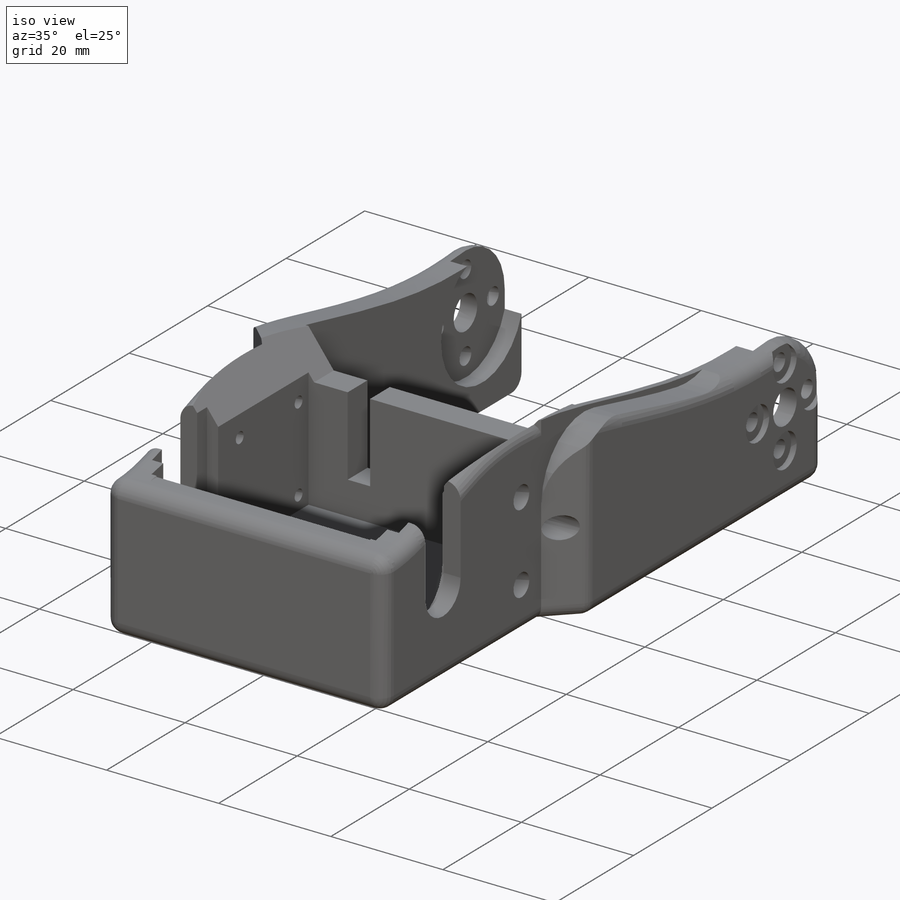
[diagram: iso view]
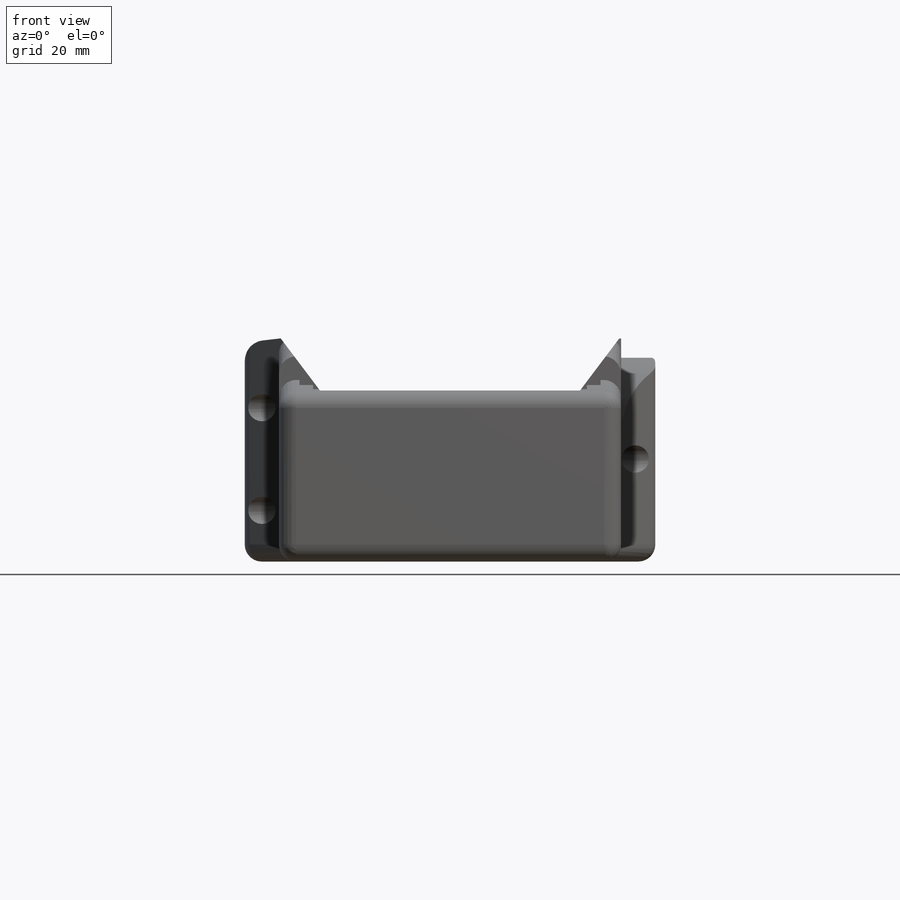
[diagram: front view]
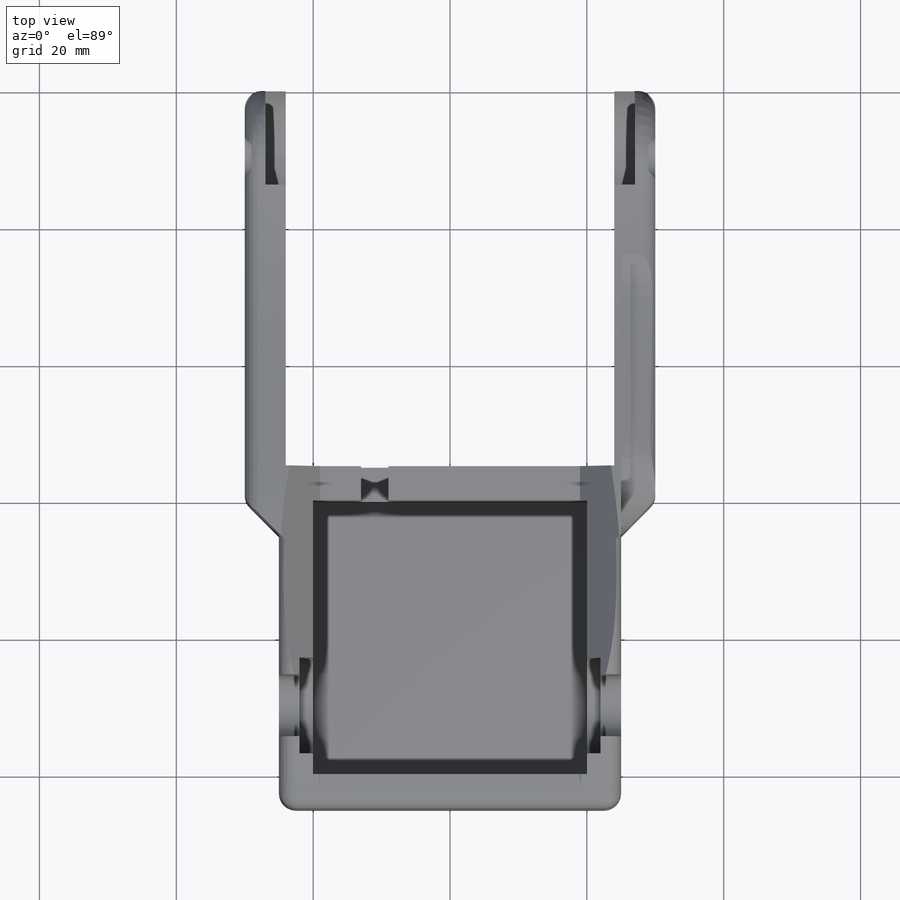
[diagram: top view]
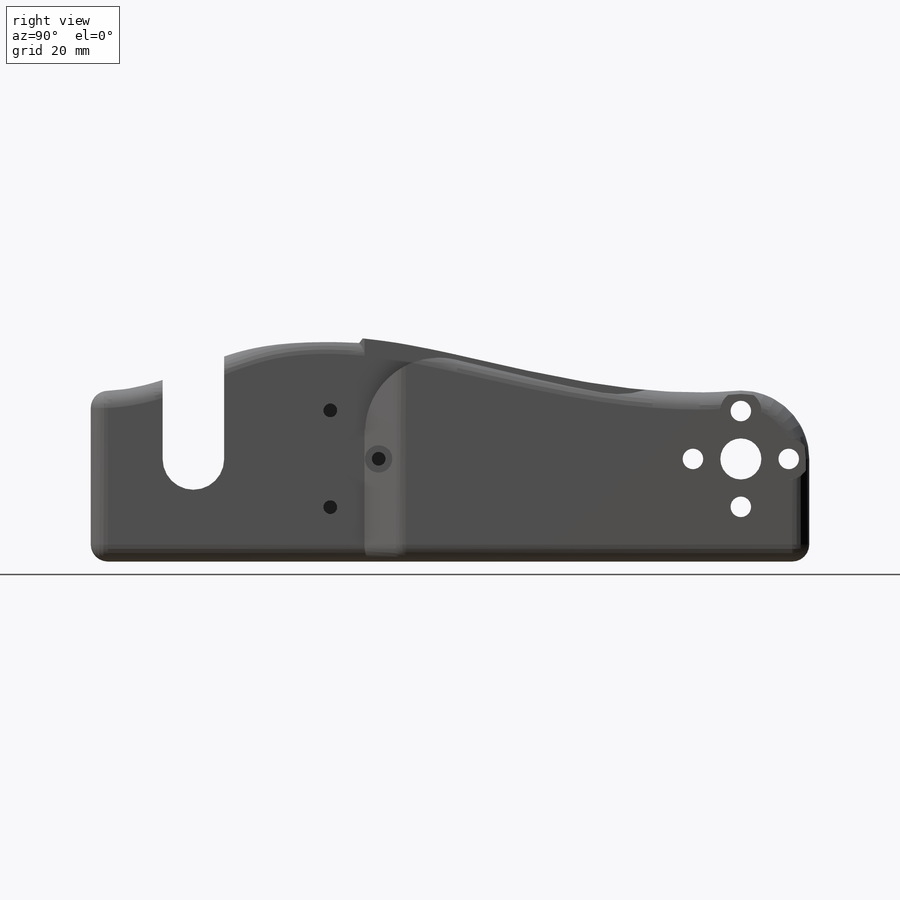
[diagram: right view]
SOLIDWORKS PART (.sldprt)
format: sldprt  version: not decoded by parser v0  size: 890,880 bytes
history: native  units: mm
features: sketch x21, cut_extrude x20, fillet x4, plane x3, material x1, extrude x1 (+10 scaffold rows collapsed)
feature tree (60):
  scaffold x10  (default folders/planes/origin — collapsed)
  material  "Material <sin especificar>"
  plane  "Alzado"
  plane  "Planta"
  plane  "Vista lateral"
  sketch  "Croquis1"  dims[D1=1.0mm]
  extrude  "Saliente-Extruir2"  Depth=35mm
  sketch  "Croquis9"  dims[D1=5.0mm]
  cut_extrude  "Cortar-Extruir9"  Depth=10mm
  sketch  "Croquis10"  dims[D1=5.0mm]
  cut_extrude  "Cortar-Extruir10"  Depth=20mm
  sketch  "Croquis11"  dims[D1=40.0mm]
  cut_extrude  "Cortar-Extruir11"  Depth=238mm
  sketch  "Croquis12"  dims[D1=10.0mm]
  cut_extrude  "Cortar-Extruir12"  Depth=238mm
  sketch  "Croquis13"
  cut_extrude  "Cortar-Extruir13"  Depth=8mm
  fillet  "Redondeo5"  Radius=2.5mm
  fillet  "Redondeo6"  Radius=2.5mm
  fillet  "Redondeo7"  Radius=2.5mm
  fillet  "Redondeo8"  Radius=2.5mm
  sketch  "Croquis14"  dims[D1=~6.787111mm]
  cut_extrude  "Cortar-Extruir14"  Depth=65mm
  sketch  "Croquis16"  dims[D1=~12.247253mm]
  cut_extrude  "Cortar-Extruir15"  Depth=3mm
  sketch  "Croquis17"  dims[D1=~3.424825mm]
  cut_extrude  "Cortar-Extruir16"  Depth=130mm
  sketch  "Croquis18"  dims[D1=~5.242872mm]
  cut_extrude  "Cortar-Extruir17"  Depth=1mm
  sketch  "Croquis19"  dims[D1=~3.934373mm]
  cut_extrude  "Cortar-Extruir18"  Depth=1mm
  sketch  "Croquis20"  dims[c1.D2=~2.216583mm c1.D1=~3.621941mm c2.D1=90.0deg c2.D2=10.0mm]
  cut_extrude  "Cortar-Extruir19"  Depth=10mm
  sketch  "Croquis21"  dims[D1=~2.718969mm]
  cut_extrude  "Cortar-Extruir20"  Depth=7.5mm
  sketch  "Croquis22"  dims[D1=7.5mm]
  cut_extrude  "Cortar-Extruir21"  Depth=24.5mm
  sketch  "Croquis23"  dims[D1=~6.545031mm]
  cut_extrude  "Cortar-Extruir22"  Depth=7.5mm
  sketch  "Croquis24"  dims[D1=6.0mm]
  cut_extrude  "Cortar-Extruir23"  Depth=7.5mm
  sketch  "Croquis25"
  cut_extrude  "Cortar-Extruir24"  [1 undecoded]
  sketch  "Croquis26"  dims[D1=~6.963833mm]
  cut_extrude  "Cortar-Extruir25"  Depth=3mm
  sketch  "Croquis27"
  cut_extrude  "Cortar-Extruir26"  Depth=3mm
  sketch  "Croquis29"  dims[D1=40.0mm]
  cut_extrude  "Cortar-Extruir29"  Depth=26mm
  sketch  "Croquis30"  dims[D1=1.0mm]
  cut_extrude  "Cortar-Extruir30"  Depth=26mm
decode coverage: 42 of 46 modeling features carry decoded parameters
note: ~ marks probable driven/reference dimensions
note: 1 parameter value undecoded
note: suppression state not decoded; provenance and decode notes live in map.json
